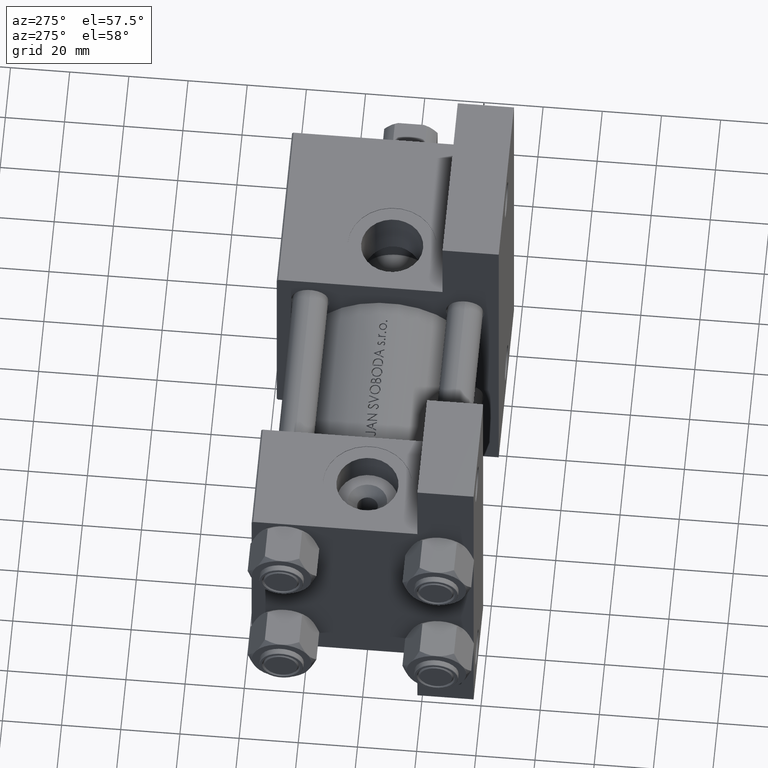
[diagram: clean part render]
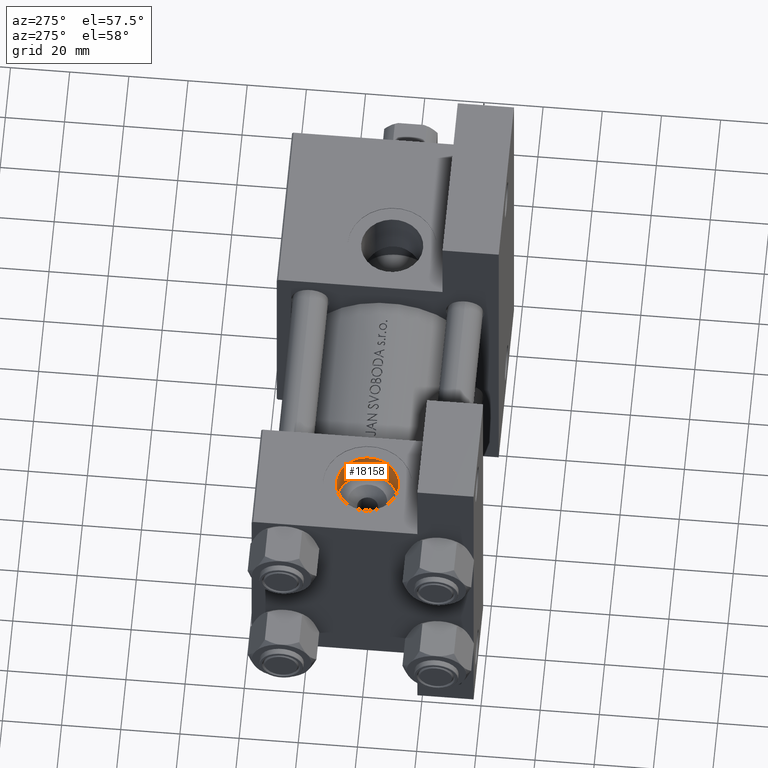
[diagram: same view with one face highlighted and labeled with its STEP entity id]
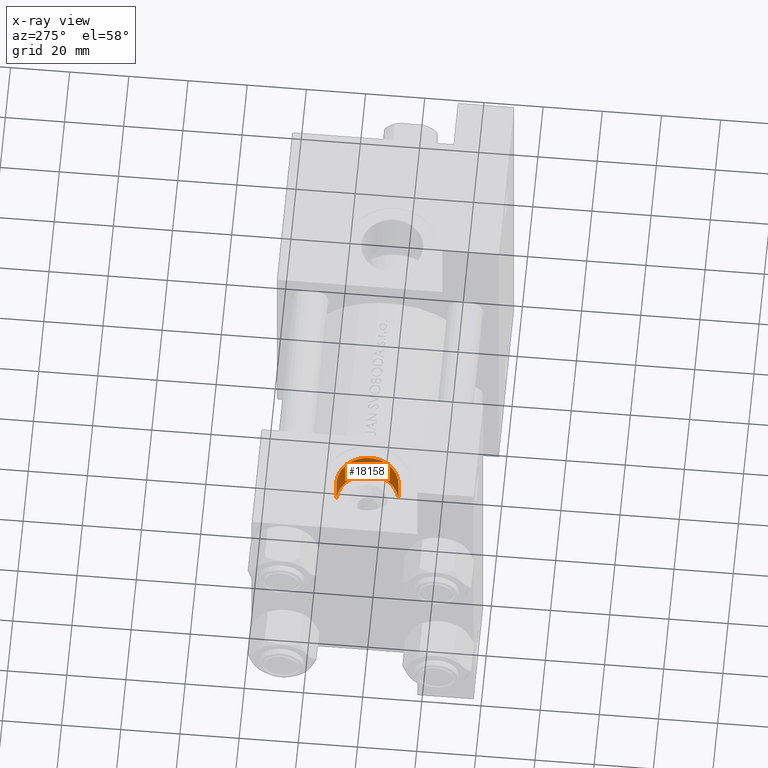
[diagram: x-ray of the same camera — body ghosted, the highlighted face saturated]
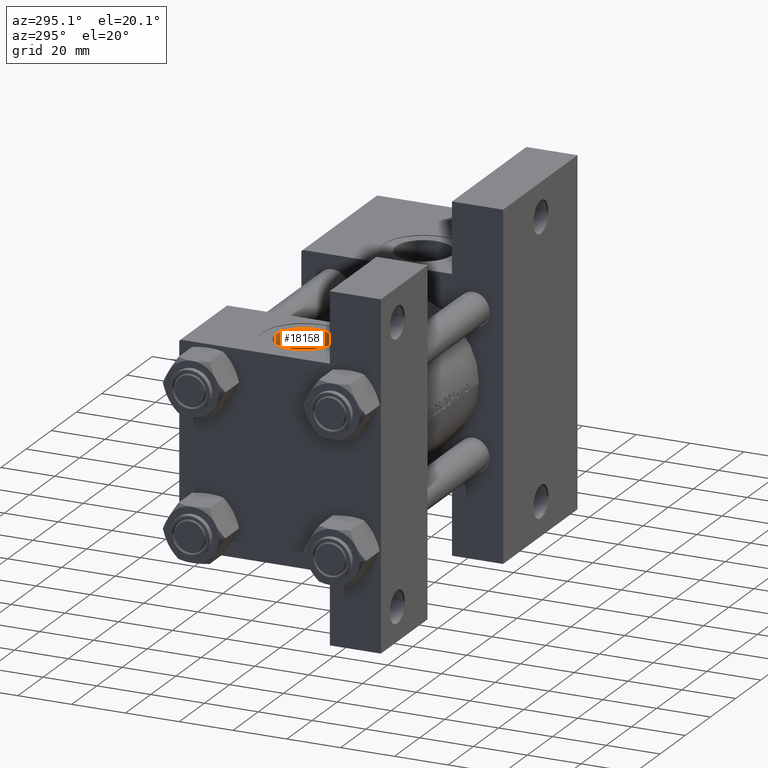
[diagram: same view with one face highlighted and labeled with its STEP entity id]
A machine part, auxiliary view. The second image highlights one B-rep face of the part: STEP entity #18158.
The next image is the same camera in x-ray: the body ghosted, the highlighted face saturated — about 0% of this face is hidden behind the body in this view.
A second angle (auxiliary view) of the same face is appended — the face is thin or edge-on in the first view.
In plain terms, the highlighted cylindrical surface (edge-blend (fillet) strip) has radius 10.48 mm, axis along (-0, -0, 1).
Its self-contained STEP definition (entity closure, byte-faithful):
#2651 = EDGE_CURVE ( 'NONE', #29224, #34288, #34691, .T. ) ;
#2681 = DIRECTION ( 'NONE',  ( 0.000000000000000000, 0.000000000000000000, -1.000000000000000000 ) ) ;
#3999 = CIRCLE ( 'NONE', #17481, 10.48000000000000043 ) ;
#4780 = CARTESIAN_POINT ( 'NONE',  ( 18.50000000000000000, -26.60000000000000497, -10.48000000000000220 ) ) ;
#5731 = DIRECTION ( 'NONE',  ( 0.000000000000000000, -1.000000000000000000, -8.673617379884036705E-17 ) ) ;
#5892 = ORIENTED_EDGE ( 'NONE', *, *, #34970, .F. ) ;
#5958 = CIRCLE ( 'NONE', #17863, 10.48000000000000043 ) ;
#8010 = DIRECTION ( 'NONE',  ( 0.000000000000000000, -1.000000000000000000, -8.673617379884036705E-17 ) ) ;
#8019 = DIRECTION ( 'NONE',  ( -0.000000000000000000, -1.000000000000000000, -8.673617379884036705E-17 ) ) ;
#9393 = DIRECTION ( 'NONE',  ( -0.000000000000000000, -1.000000000000000000, -8.673617379884036705E-17 ) ) ;
#9639 = FACE_OUTER_BOUND ( 'NONE', #46744, .T. ) ;
#11986 = DIRECTION ( 'NONE',  ( 0.000000000000000000, 0.000000000000000000, -1.000000000000000000 ) ) ;
#12773 = VECTOR ( 'NONE', #25668, 1000.000000000000000 ) ;
#17481 = AXIS2_PLACEMENT_3D ( 'NONE', #42158, #8010, #11986 ) ;
#17863 = AXIS2_PLACEMENT_3D ( 'NONE', #20934, #5731, #40128 ) ;
#18158 = ADVANCED_FACE ( 'NONE', ( #9639 ), #44530, .F. ) ;
#20144 = CARTESIAN_POINT ( 'NONE',  ( 18.50000000000000000, -26.60000000000000497, 10.47999999999999865 ) ) ;
#20856 = CARTESIAN_POINT ( 'NONE',  ( 18.50000000000000000, -37.30000000000000426, -10.48000000000000398 ) ) ;
#20934 = CARTESIAN_POINT ( 'NONE',  ( 18.50000000000000000, -37.30000000000000426, -3.452099717193846907E-15 ) ) ;
#21183 = LINE ( 'NONE', #44342, #12773 ) ;
#23716 = ORIENTED_EDGE ( 'NONE', *, *, #48823, .T. ) ;
#25245 = CARTESIAN_POINT ( 'NONE',  ( 18.50000000000000000, -37.30000000000000426, 10.47999999999999687 ) ) ;
#25668 = DIRECTION ( 'NONE',  ( -0.000000000000000000, -1.000000000000000000, -8.673617379884036705E-17 ) ) ;
#28735 = CARTESIAN_POINT ( 'NONE',  ( 18.50000000000000000, -26.60000000000000497, -10.48000000000000220 ) ) ;
#29224 = VERTEX_POINT ( 'NONE', #28735 ) ;
#29441 = EDGE_CURVE ( 'NONE', #29224, #29745, #3999, .T. ) ;
#29745 = VERTEX_POINT ( 'NONE', #20144 ) ;
#31763 = AXIS2_PLACEMENT_3D ( 'NONE', #47282, #9393, #2681 ) ;
#34288 = VERTEX_POINT ( 'NONE', #20856 ) ;
#34691 = LINE ( 'NONE', #4780, #48747 ) ;
#34970 = EDGE_CURVE ( 'NONE', #29745, #44417, #21183, .T. ) ;
#40128 = DIRECTION ( 'NONE',  ( 0.000000000000000000, 0.000000000000000000, -1.000000000000000000 ) ) ;
#41310 = ORIENTED_EDGE ( 'NONE', *, *, #2651, .T. ) ;
#42158 = CARTESIAN_POINT ( 'NONE',  ( 18.50000000000000000, -26.60000000000000497, -2.524022657546255111E-15 ) ) ;
#44342 = CARTESIAN_POINT ( 'NONE',  ( 18.50000000000000000, -26.60000000000000497, 10.47999999999999865 ) ) ;
#44417 = VERTEX_POINT ( 'NONE', #25245 ) ;
#44530 = CYLINDRICAL_SURFACE ( 'NONE', #31763, 10.48000000000000043 ) ;
#45434 = ORIENTED_EDGE ( 'NONE', *, *, #29441, .F. ) ;
#46744 = EDGE_LOOP ( 'NONE', ( #5892, #45434, #41310, #23716 ) ) ;
#47282 = CARTESIAN_POINT ( 'NONE',  ( 18.50000000000000000, -26.60000000000000497, -2.524022657546255111E-15 ) ) ;
#48747 = VECTOR ( 'NONE', #8019, 1000.000000000000000 ) ;
#48823 = EDGE_CURVE ( 'NONE', #34288, #44417, #5958, .T. ) ;